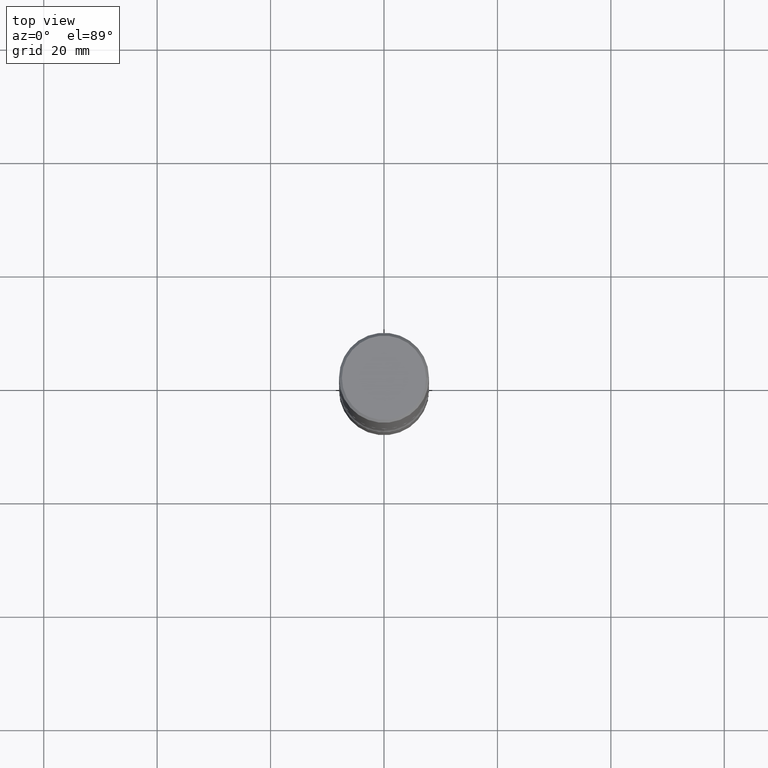
[diagram: clean part render]
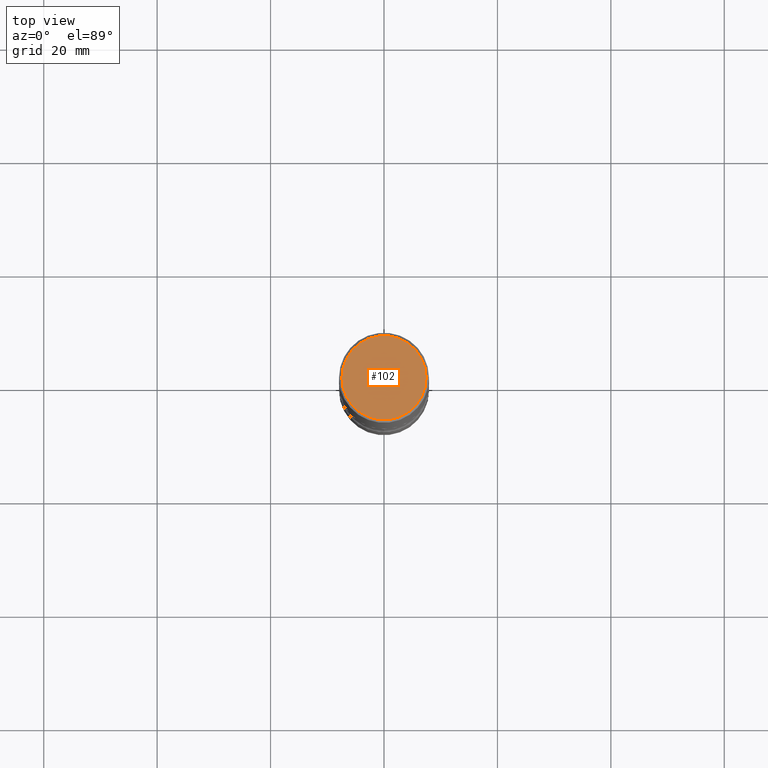
[diagram: same view with one face highlighted and labeled with its STEP entity id]
A machine part, top view. The second image highlights one B-rep face of the part: STEP entity #102.
In plain terms, the highlighted planar face has unit normal (0, -0, -1).
Its self-contained STEP definition (entity closure, byte-faithful):
#6 = CARTESIAN_POINT ( 'NONE',  ( 0.2924999999999997602, -2.110215457714318748E-15, 1.452077414963940822E-29 ) ) ;
#35 = ORIENTED_EDGE ( 'NONE', *, *, #488, .T. ) ;
#49 = CIRCLE ( 'NONE', #362, 0.2924999999999997602 ) ;
#55 = CARTESIAN_POINT ( 'NONE',  ( 2.042516583223230962E-15, 0.2924999999999997602, -1.021258291611619228E-15 ) ) ;
#69 = CARTESIAN_POINT ( 'NONE',  ( 0.000000000000000000, 0.000000000000000000, 0.000000000000000000 ) ) ;
#80 = DIRECTION ( 'NONE',  ( 1.000000000000000000, -6.982962677686266711E-15, 4.876176775795936353E-29 ) ) ;
#97 = DIRECTION ( 'NONE',  ( -1.000000000000000000, 6.982962677686265922E-15, -4.876176775795935793E-29 ) ) ;
#102 = ADVANCED_FACE ( 'NONE', ( #487 ), #527, .F. ) ;
#115 = DIRECTION ( 'NONE',  ( -2.445468806185136597E-29, 3.491481338843145583E-15, 1.000000000000000000 ) ) ;
#170 = AXIS2_PLACEMENT_3D ( 'NONE', #55, #390, #97 ) ;
#201 = CIRCLE ( 'NONE', #253, 0.2924999999999997602 ) ;
#207 = CARTESIAN_POINT ( 'NONE',  ( -0.2924999999999997602, 2.077431396611662611E-15, -1.440630921208799100E-29 ) ) ;
#215 = CARTESIAN_POINT ( 'NONE',  ( 0.000000000000000000, 0.000000000000000000, 0.000000000000000000 ) ) ;
#253 = AXIS2_PLACEMENT_3D ( 'NONE', #215, #115, #516 ) ;
#356 = EDGE_CURVE ( 'NONE', #446, #547, #49, .T. ) ;
#362 = AXIS2_PLACEMENT_3D ( 'NONE', #69, #417, #80 ) ;
#390 = DIRECTION ( 'NONE',  ( 2.438088387897960049E-29, -3.491481338843145188E-15, -1.000000000000000000 ) ) ;
#417 = DIRECTION ( 'NONE',  ( -2.445468806185136597E-29, 3.491481338843145583E-15, 1.000000000000000000 ) ) ;
#446 = VERTEX_POINT ( 'NONE', #207 ) ;
#487 = FACE_OUTER_BOUND ( 'NONE', #559, .T. ) ;
#488 = EDGE_CURVE ( 'NONE', #547, #446, #201, .T. ) ;
#514 = ORIENTED_EDGE ( 'NONE', *, *, #356, .T. ) ;
#516 = DIRECTION ( 'NONE',  ( 1.000000000000000000, -6.982962677686266711E-15, 4.876176775795936353E-29 ) ) ;
#527 = PLANE ( 'NONE',  #170 ) ;
#547 = VERTEX_POINT ( 'NONE', #6 ) ;
#559 = EDGE_LOOP ( 'NONE', ( #514, #35 ) ) ;